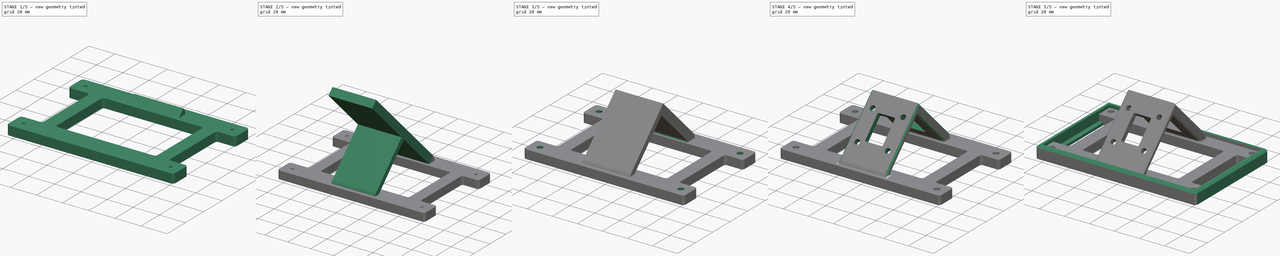
[diagram: build sequence overview — one tinted view per stage of 5, left to right]
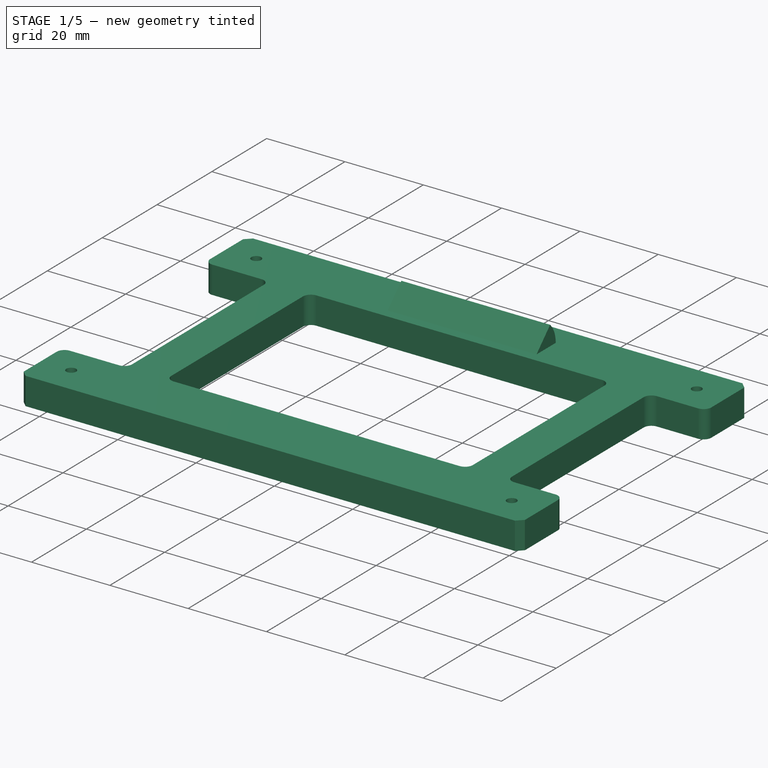
[diagram: stage 1 of 5 — iso view after this stage's code; geometry added in this stage tinted green]
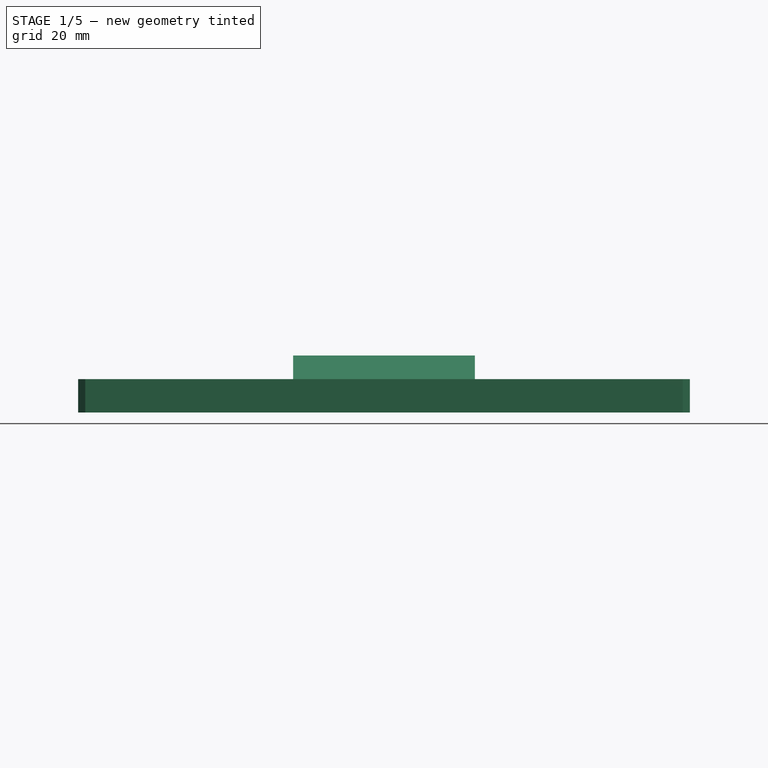
[diagram: stage 1 of 5 — front view after this stage's code; geometry added in this stage tinted green]
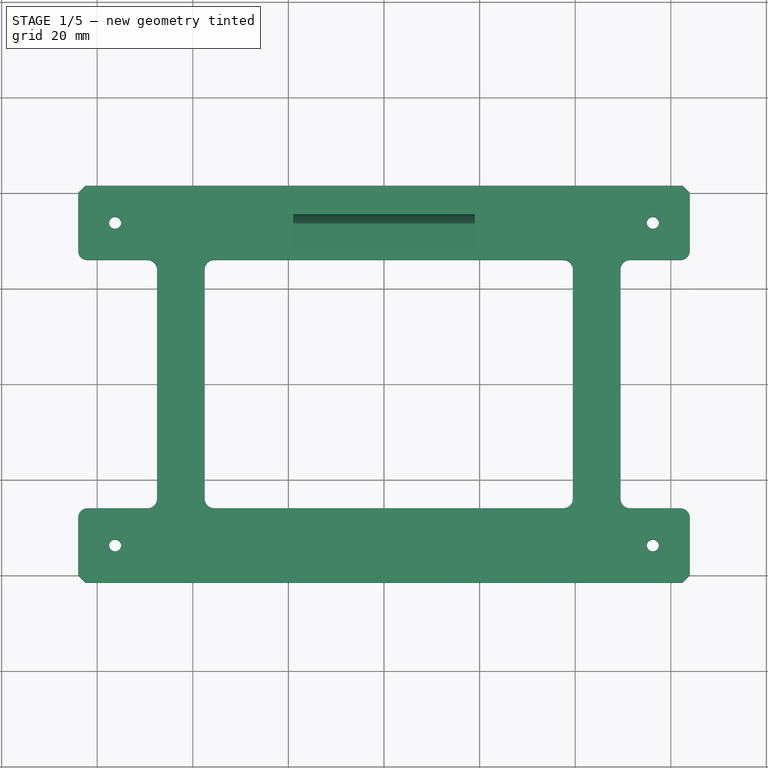
[diagram: stage 1 of 5 — top view after this stage's code; geometry added in this stage tinted green]
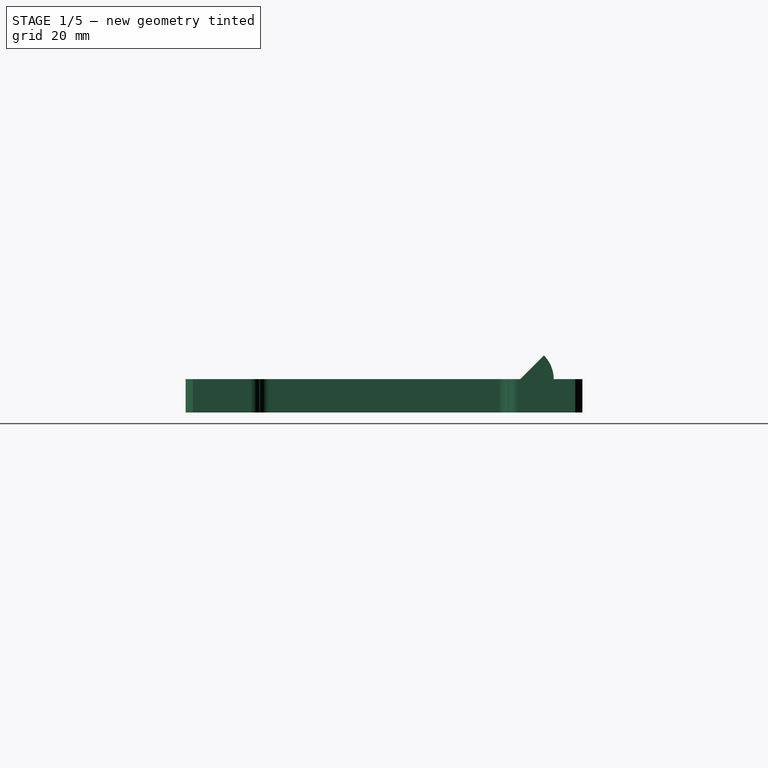
[diagram: stage 1 of 5 — right view after this stage's code; geometry added in this stage tinted green]
FCSTD DOCUMENT  (FreeCAD 1.1RUnknown)
Label: display_mount
License: All rights reserved
LicenseURL: https://en.wikipedia.org/wiki/All_rights_reserved
objects: Sketcher::SketchObject×8, PartDesign::Pocket×5, PartDesign::Pad×4, PartDesign::Chamfer×3, App::Point×2, PartDesign::Body×2, PartDesign::Revolution×2, Spreadsheet::Sheet×1, PartDesign::Fillet×1
note: 63 computed .brp shape members not serialized (recipe doc carries the construction recipe); baked Part::Feature solids carry a one-line shape summary decoded from their .brp

FEATURE [PartDesign::Body] Body  label="Backplate"
  AllowCompound = false
  Group = -> [Sketch,Pad,Sketch001,Pocket,Chamfer]
  Origin = -> Origin
  Placement = pos=(0,0,45) rot=(0,0,1;3.14159rad)
  Tip = -> Chamfer
FEATURE [App::Point] Origin003
  Role = Origin
FEATURE [Sketcher::SketchObject] Sketch002
  ArcFitTolerance = 1e-06
  AttachmentSupport = -> [Origin002]
  ExternalTypes = [0]
  FullyConstrained = true
  MakeInternals = false
  MapMode = 5
  _ExternalGeoVersion = 1
  expr: Constraints[10] = Spreadsheet.display_screw_thread_width
  expr: Constraints[11] = Spreadsheet.display_offset_screw_y + Spreadsheet.enclosure_width_wall
  expr: Constraints[28] = Spreadsheet.display_offset_screw_x + Spreadsheet.enclosure_width_wall
  expr: Constraints[34] = Spreadsheet.enclosure_width_wall + Spreadsheet.enclosure_vertical_1_x
  expr: Constraints[35] = Spreadsheet.enclosure_vertical_width
  expr: Constraints[36] = Spreadsheet.enclosure_width_wall + Spreadsheet.enclosure_vertical_2_x
  expr: Constraints[37] = Spreadsheet.enclosure_vertical_width
  expr: Constraints[8] = Spreadsheet.display_width + Spreadsheet.enclosure_width_wall * 2
  expr: Constraints[9] = Spreadsheet.display_height + Spreadsheet.enclosure_width_wall * 2
  sketch-geometry (48):
    g0: LineSegment StartX=64 StartY=-41.5 StartZ=0 EndX=64 EndY=-28 EndZ=0
    g1: LineSegment StartX=64 StartY=41.5 StartZ=0 EndX=-64 EndY=41.5 EndZ=0
    g2: LineSegment StartX=-64 StartY=41.5 StartZ=0 EndX=-64 EndY=28 EndZ=0
    g3: LineSegment StartX=-64 StartY=-41.5 StartZ=0 EndX=64 EndY=-41.5 EndZ=0
    g4: GeomPoint [constr] X=0 Y=0 Z=0
    g5: Circle CenterX=-56.25 CenterY=33.75 CenterZ=0 NormalX=0 NormalY=0 NormalZ=1 AngleXU=0 Radius=1.25
    g6: Circle CenterX=56.25 CenterY=33.75 CenterZ=0 NormalX=0 NormalY=0 NormalZ=1 AngleXU=0 Radius=1.25
    g7: Circle CenterX=-56.25 CenterY=-33.75 CenterZ=0 NormalX=0 NormalY=0 NormalZ=1 AngleXU=0 Radius=1.25
    g8: Circle CenterX=56.25 CenterY=-33.75 CenterZ=0 NormalX=0 NormalY=0 NormalZ=1 AngleXU=0 Radius=1.25
    g9: LineSegment StartX=-62 StartY=-26 StartZ=0 EndX=-49.5 EndY=-26 EndZ=0
    g10: LineSegment [constr] StartX=-56.25 StartY=-33.75 StartZ=0 EndX=-56.25 EndY=-26 EndZ=0
    g11: LineSegment [constr] StartX=-56.25 StartY=-33.75 StartZ=0 EndX=-56.25 EndY=-41.5 EndZ=0
    g12: LineSegment StartX=-62 StartY=26 StartZ=0 EndX=-49.5 EndY=26 EndZ=0
    g13: LineSegment StartX=-64 StartY=-28 StartZ=0 EndX=-64 EndY=-41.5 EndZ=0
    g14: LineSegment StartX=64 StartY=28 StartZ=0 EndX=64 EndY=41.5 EndZ=0
    g15: LineSegment StartX=-47.5 StartY=24 StartZ=0 EndX=-47.5 EndY=-24 EndZ=0
    g16: LineSegment StartX=-37.5 StartY=24 StartZ=0 EndX=-37.5 EndY=-24 EndZ=0
    g17: LineSegment StartX=39.5 StartY=24 StartZ=0 EndX=39.5 EndY=-24 EndZ=0
    g18: LineSegment StartX=49.5 StartY=24 StartZ=0 EndX=49.5 EndY=-24 EndZ=0
    g19: LineSegment StartX=-35.5 StartY=26 StartZ=0 EndX=37.5 EndY=26 EndZ=0
    g20: LineSegment StartX=-35.5 StartY=-26 StartZ=0 EndX=37.5 EndY=-26 EndZ=0
    g21: LineSegment StartX=51.5 StartY=26 StartZ=0 EndX=62 EndY=26 EndZ=0
    g22: LineSegment StartX=51.5 StartY=-26 StartZ=0 EndX=62 EndY=-26 EndZ=0
    g23: ArcOfCircle CenterX=-62 CenterY=-28 CenterZ=0 NormalX=0 NormalY=0 NormalZ=1 AngleXU=0 Radius=2 StartAngle=1.5708 EndAngle=3.14159
    g24: GeomPoint [constr] X=-64 Y=-26 Z=0
    g25: ArcOfCircle CenterX=-49.5 CenterY=-24 CenterZ=0 NormalX=0 NormalY=0 NormalZ=1 AngleXU=0 Radius=2 StartAngle=4.71239 EndAngle=6.28319
    g26: GeomPoint [constr] X=-47.5 Y=-26 Z=0
    g27: ArcOfCircle CenterX=-35.5 CenterY=-24 CenterZ=0 NormalX=0 NormalY=0 NormalZ=1 AngleXU=0 Radius=2 StartAngle=3.14159 EndAngle=4.71239
    g28: GeomPoint [constr] X=-37.5 Y=-26 Z=0
    g29: LineSegment [constr] StartX=-62 StartY=-28 StartZ=0 EndX=-64 EndY=-28 EndZ=0
    g30: ArcOfCircle CenterX=-62 CenterY=28 CenterZ=0 NormalX=0 NormalY=0 NormalZ=1 AngleXU=0 Radius=2 StartAngle=3.14159 EndAngle=4.71239
    g31: GeomPoint [constr] X=-64 Y=26 Z=0
    g32: ArcOfCircle CenterX=-49.5 CenterY=24 CenterZ=0 NormalX=0 NormalY=0 NormalZ=1 AngleXU=0 Radius=2 StartAngle=0 EndAngle=1.5708
    g33: GeomPoint [constr] X=-47.5 Y=26 Z=0
    g34: ArcOfCircle CenterX=-35.5 CenterY=24 CenterZ=0 NormalX=0 NormalY=0 NormalZ=1 AngleXU=0 Radius=2 StartAngle=1.5708 EndAngle=3.14159
    g35: GeomPoint [constr] X=-37.5 Y=26 Z=0
    g36: ArcOfCircle CenterX=37.5 CenterY=-24 CenterZ=0 NormalX=0 NormalY=0 NormalZ=1 AngleXU=0 Radius=2 StartAngle=4.71239 EndAngle=6.28319
    g37: GeomPoint [constr] X=39.5 Y=-26 Z=0
    g38: ArcOfCircle CenterX=37.5 CenterY=24 CenterZ=0 NormalX=0 NormalY=0 NormalZ=1 AngleXU=0 Radius=2 StartAngle=6e-16 EndAngle=1.5708
    g39: GeomPoint [constr] X=39.5 Y=26 Z=0
    g40: ArcOfCircle CenterX=51.5 CenterY=24 CenterZ=0 NormalX=0 NormalY=0 NormalZ=1 AngleXU=0 Radius=2 StartAngle=1.5708 EndAngle=3.14159
    g41: GeomPoint [constr] X=49.5 Y=26 Z=0
    g42: ArcOfCircle CenterX=62 CenterY=28 CenterZ=0 NormalX=0 NormalY=0 NormalZ=1 AngleXU=0 Radius=2 StartAngle=4.71239 EndAngle=6.28319
    g43: GeomPoint [constr] X=64 Y=26 Z=0
    g44: ArcOfCircle CenterX=62 CenterY=-28 CenterZ=0 NormalX=0 NormalY=0 NormalZ=1 AngleXU=0 Radius=2 StartAngle=8e-16 EndAngle=1.5708
    g45: GeomPoint [constr] X=64 Y=-26 Z=0
    g46: ArcOfCircle CenterX=51.5 CenterY=-24 CenterZ=0 NormalX=0 NormalY=0 NormalZ=1 AngleXU=0 Radius=2 StartAngle=3.14159 EndAngle=4.71239
    g47: GeomPoint [constr] X=49.5 Y=-26 Z=0
  constraints (107):
    c: Coincident(g14,g1)
    c: Coincident(g1,g2)
    c: Coincident(g13,g3)
    c: Coincident(g3,g0)
    c: Horizontal(g1)
    c: Horizontal(g3)
    c: Symmetric(g2,g0,g4)
    c: Coincident(g4,g-1)
    c: DistanceX(g3,g3) = 128
    c: DistanceY(g13,g2) = 83
    c: Diameter(g5) = 2.5
    c: Distance(g5,g1) = 7.75
    c: Equal(g5,g6)
    c: Symmetric(g5,g6,g-2)
    c: Equal(g5,g7)
    c: Symmetric(g5,g7,g-1)
    c: Equal(g7,g8)
    c: Symmetric(g7,g8,g-2)
    c: Vertical(g10)
    c: Coincident(g10,g7)
    c: Vertical(g11)
    c: Coincident(g11,g7)
    c: PointOnObject(g11,g3)
    c: Equal(g10,g11)
    c: Symmetric(g24,g31,g-1)
    c: Symmetric(g45,g43,g-1)
    c: Vertical(g2)
    c: Vertical(g13)
    c: Distance(g5,g2) = 7.75
    c: Vertical(g0)
    c: Vertical(g14)
    c: Vertical(g15)
    c: Vertical(g16)
    c: Vertical(g17)
    c: DistanceX(g31,g33) = 16.5
    c: DistanceX(g33,g35) = 10
    c: DistanceX(g31,g39) = 103.5
    c: DistanceX(g39,g41) = 10
    c: Horizontal(g9)
    c: PointOnObject(g10,g9)
    c: Tangent(g12,g19)
    c: Tangent(g9,g20)
    c: Tangent(g20,g22)
    c: Parallel(g18,g17)
    c: Tangent(g19,g21)
    c: PointOnObject(g24,g9)
    c: PointOnObject(g24,g13)
    c: Tangent(g9,g23) = 1.5708
    c: Tangent(g13,g23) = -1.5708
    c: PointOnObject(g26,g9)
    c: PointOnObject(g26,g15)
    c: Tangent(g9,g25) = -1.5708
    c: Tangent(g15,g25) = 1.5708
    c: PointOnObject(g28,g16)
    c: PointOnObject(g28,g20)
    c: Tangent(g16,g27) = -1.5708
    c: Tangent(g20,g27) = -1.5708
    c: Coincident(g29,g23)
    c: Coincident(g29,g13)
    c: DistanceX(g29,g29) = 2
    c: Equal(g23,g25)
    c: Equal(g27,g23)
    c: PointOnObject(g31,g2)
    c: PointOnObject(g31,g12)
    c: Tangent(g2,g30) = -1.5708
    c: Tangent(g12,g30) = -1.5708
    c: PointOnObject(g33,g12)
    c: PointOnObject(g33,g15)
    c: Tangent(g12,g32) = 1.5708
    c: Tangent(g15,g32) = 1.5708
    c: PointOnObject(g35,g16)
    c: PointOnObject(g35,g19)
    c: Tangent(g16,g34) = -1.5708
    c: Tangent(g19,g34) = 1.5708
    c: PointOnObject(g37,g17)
    c: PointOnObject(g37,g20)
    c: Tangent(g17,g36) = 1.5708
    c: Tangent(g20,g36) = -1.5708
    c: PointOnObject(g39,g17)
    c: PointOnObject(g39,g19)
    c: Tangent(g17,g38) = 1.5708
    c: Tangent(g19,g38) = 1.5708
    c: PointOnObject(g41,g18)
    c: PointOnObject(g41,g21)
    c: Tangent(g18,g40) = -1.5708
    c: Tangent(g21,g40) = 1.5708
    c: PointOnObject(g43,g14)
    c: PointOnObject(g43,g21)
    c: Tangent(g14,g42) = -1.5708
    c: Tangent(g21,g42) = -1.5708
    c: PointOnObject(g45,g0)
    c: PointOnObject(g45,g22)
    c: Tangent(g0,g44) = -1.5708
    c: Tangent(g22,g44) = 1.5708
    c: PointOnObject(g47,g18)
    c: PointOnObject(g47,g22)
    c: Tangent(g18,g46) = -1.5708
    c: Tangent(g22,g46) = -1.5708
    c: Equal(g30,g23)
    c: Equal(g32,g23)
    c: Equal(g34,g23)
    c: Equal(g38,g23)
    c: Equal(g36,g23)
    c: Equal(g46,g23)
    c: Equal(g40,g23)
    c: Equal(g42,g23)
    c: Equal(g44,g23)
FEATURE [PartDesign::Pad] Pad001
  Direction = (0,0,1)
  Length = 7
  Length2 = 10
  Profile = -> Sketch002
  ReferenceAxis = -> Sketch002 [N_Axis]
  Refine = true
  SideType = 0
  Suppressed = false
  Type = 0
  Type2 = 0
FEATURE [PartDesign::Chamfer] Chamfer001
  Angle = 45
  Base = -> Pad001 [Edge8,Edge35,Edge5,Edge38]
  BaseFeature = -> Pad001
  ChamferType = 0
  FlipDirection = false
  Refine = true
  Size = 1.5
  Size2 = 1
  SupportTransform = false
  Suppressed = false
  UseAllEdges = false
FEATURE [Sketcher::SketchObject] Sketch003
  ArcFitTolerance = 1e-06
  AttachmentSupport = -> [Chamfer001]
  ExternalGeometry = -> [Chamfer001]
  ExternalTypes = [0,0]
  FullyConstrained = true
  MakeInternals = false
  MapMode = 5
  Placement = pos=(0,0,7) rot=(0,0,1;0rad)
  _ExternalGeoVersion = 1
  sketch-geometry (5):
    g0: LineSegment StartX=19 StartY=28.5 StartZ=0 EndX=19 EndY=35.5 EndZ=0
    g1: LineSegment StartX=19 StartY=35.5 StartZ=0 EndX=-19 EndY=35.5 EndZ=0
    g2: LineSegment StartX=-19 StartY=35.5 StartZ=0 EndX=-19 EndY=28.5 EndZ=0
    g3: LineSegment StartX=-19 StartY=28.5 StartZ=0 EndX=19 EndY=28.5 EndZ=0
    g4: GeomPoint [constr] X=0 Y=32 Z=0
  constraints (13):
    c: Coincident(g0,g1)
    c: Coincident(g1,g2)
    c: Coincident(g2,g3)
    c: Coincident(g3,g0)
    c: Vertical(g0)
    c: Vertical(g2)
    c: Horizontal(g1)
    c: Horizontal(g3)
    c: Symmetric(g2,g0,g4)
    c: PointOnObject(g4,g-2)
    c: DistanceY(g2,g2) = 7
    c: DistanceX(g1,g1) = 38
    c: Distance(g-3,g3) = 2.5
FEATURE [PartDesign::Revolution] Revolution
  Angle = 45
  Angle2 = 0
  Axis = (1,0,0)
  Base = (-19,28.5,7)
  BaseFeature = -> Chamfer001
  FuseOrder = 0
  Profile = -> Sketch003
  ReferenceAxis = -> Sketch003 [Edge4]
  Refine = true
  Suppressed = false
  Type = 0
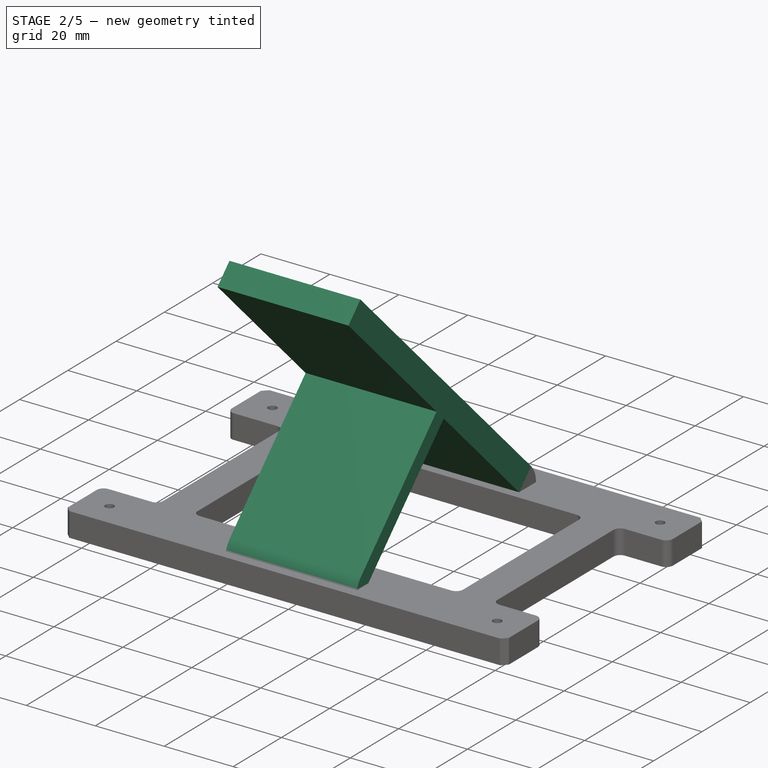
[diagram: stage 2 of 5 — iso view after this stage's code; geometry added in this stage tinted green]
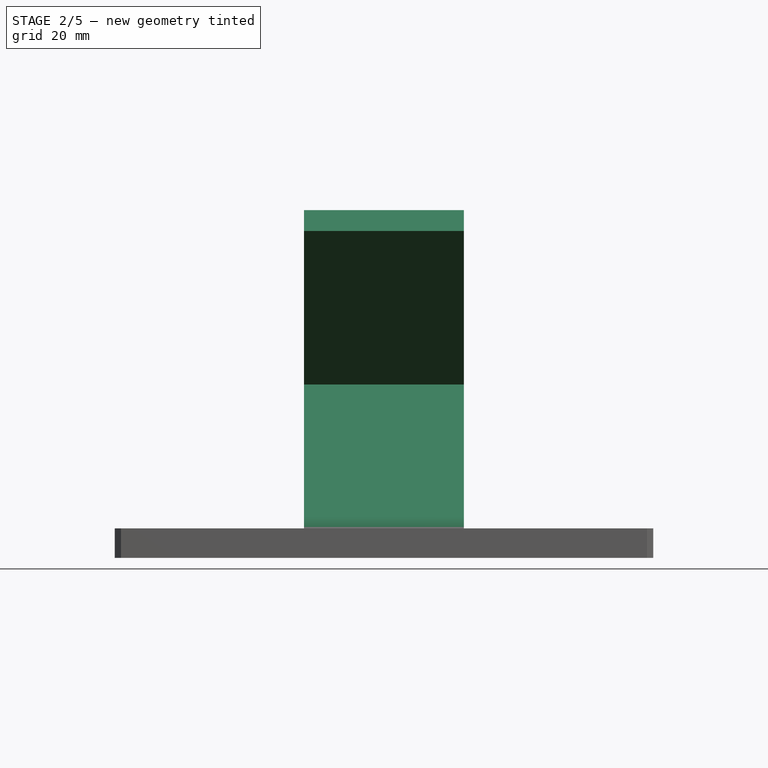
[diagram: stage 2 of 5 — front view after this stage's code; geometry added in this stage tinted green]
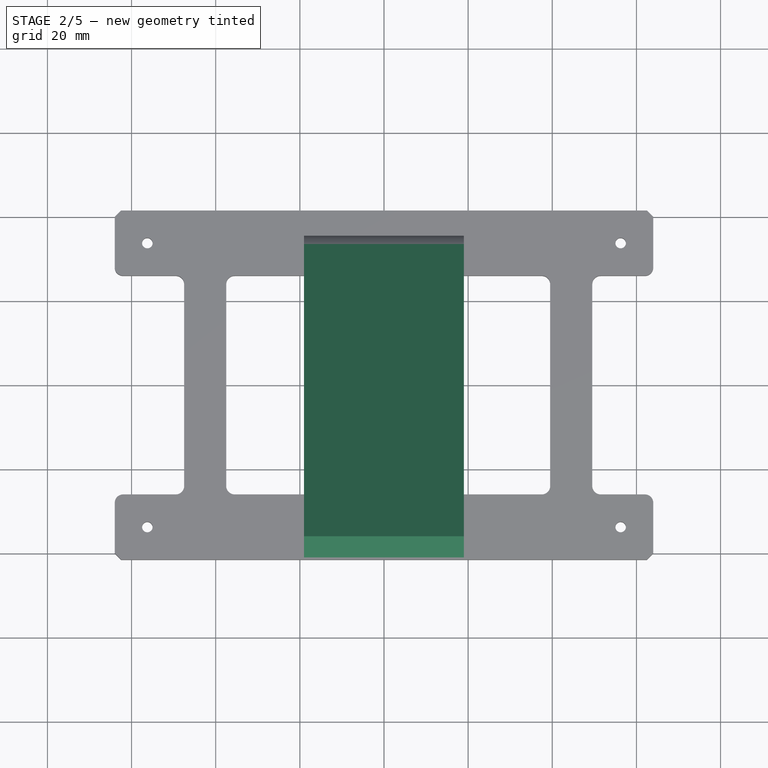
[diagram: stage 2 of 5 — top view after this stage's code; geometry added in this stage tinted green]
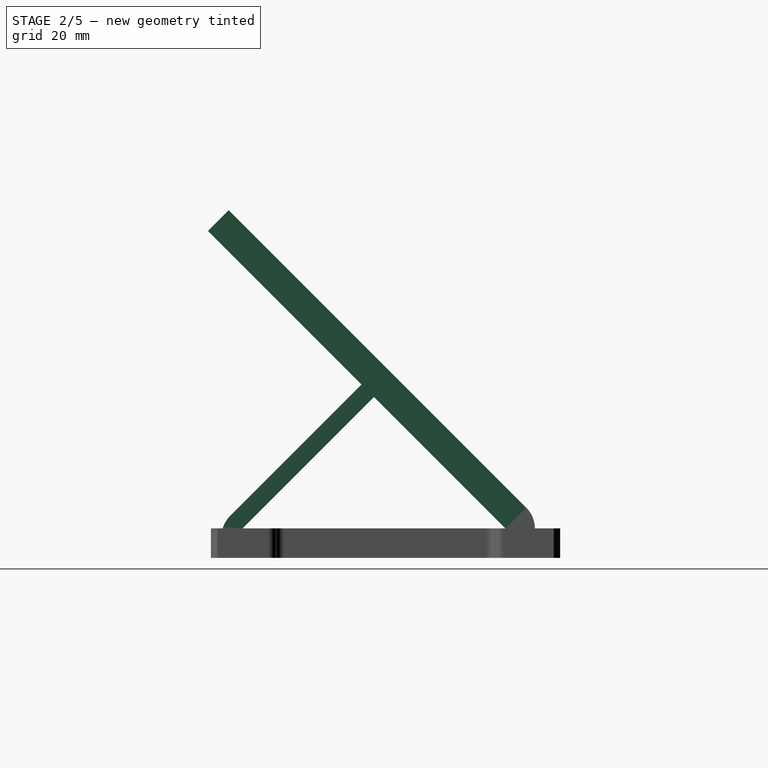
[diagram: stage 2 of 5 — right view after this stage's code; geometry added in this stage tinted green]
FEATURE [Sketcher::SketchObject] Sketch004
  ArcFitTolerance = 1e-06
  ExternalTypes = [0,0]
  FullyConstrained = true
  MakeInternals = false
  MapMode = 5
  Placement = pos=(0,0,5) rot=(0,0,1;0rad)
  _ExternalGeoVersion = 1
  sketch-geometry (5):
    g0: LineSegment StartX=-19 StartY=-39 StartZ=0 EndX=19 EndY=-39 EndZ=0
    g1: LineSegment StartX=19 StartY=-39 StartZ=0 EndX=19 EndY=-32 EndZ=0
    g2: LineSegment StartX=19 StartY=-32 StartZ=0 EndX=-19 EndY=-32 EndZ=0
    g3: LineSegment StartX=-19 StartY=-32 StartZ=0 EndX=-19 EndY=-39 EndZ=0
    g4: GeomPoint [constr] X=0 Y=-35.5 Z=0
  constraints (13):
    c: Coincident(g0,g1)
    c: Coincident(g1,g2)
    c: Coincident(g2,g3)
    c: Coincident(g3,g0)
    c: Horizontal(g0)
    c: Horizontal(g2)
    c: Vertical(g1)
    c: Vertical(g3)
    c: Symmetric(g2,g0,g4)
    c: Distance(g1,g3) = 38
    c: Distance(g0,g2) = 7
    c: PointOnObject(g4,g-2)
    c: Distance(g-4,g0) = 2.5
FEATURE [Sketcher::SketchObject] Sketch005
  ArcFitTolerance = 1e-06
  AttachmentSupport = -> [Pad001]
  ExternalGeometry = -> [Pad001]
  ExternalTypes = [0,0,0,0]
  FullyConstrained = true
  MakeInternals = false
  MapMode = 5
  Placement = pos=(0,0,7) rot=(0,0,1;0rad)
  _ExternalGeoVersion = 1
  sketch-geometry (4):
    g0: Circle CenterX=-56.25 CenterY=33.75 CenterZ=0 NormalX=0 NormalY=0 NormalZ=1 AngleXU=0 Radius=2.25
    g1: Circle CenterX=56.25 CenterY=33.75 CenterZ=0 NormalX=0 NormalY=0 NormalZ=1 AngleXU=0 Radius=2.25
    g2: Circle CenterX=56.25 CenterY=-33.75 CenterZ=0 NormalX=0 NormalY=0 NormalZ=1 AngleXU=0 Radius=2.25
    g3: Circle CenterX=-56.25 CenterY=-33.75 CenterZ=0 NormalX=0 NormalY=0 NormalZ=1 AngleXU=0 Radius=2.25
  constraints (8):
    c: Diameter(g0) = 4.5
    c: Coincident(g0,g-3)
    c: Diameter(g1) = 4.5
    c: Coincident(g1,g-4)
    c: Diameter(g2) = 4.5
    c: Coincident(g2,g-5)
    c: Diameter(g3) = 4.5
    c: Coincident(g3,g-6)
FEATURE [PartDesign::Revolution] Revolution001
  Angle = 45
  Angle2 = 0
  Axis = (-1,0,0)
  Base = (19,-32,5)
  BaseFeature = -> Revolution
  FuseOrder = 0
  Profile = -> Sketch004
  ReferenceAxis = -> Sketch004 [Edge3]
  Refine = true
  Suppressed = false
  Type = 0
FEATURE [PartDesign::Pad] Pad002
  BaseFeature = -> Revolution001
  Direction = (0,-0.707107,0.707107)
  Length = 100
  Length2 = 10
  Profile = -> Revolution001 [Face44]
  Refine = true
  SideType = 0
  Suppressed = false
  Type = 0
  Type2 = 0
FEATURE [PartDesign::Pad] Pad003
  BaseFeature = -> Pad002
  Direction = (0,0.707107,0.707107)
  Length = 10
  Length2 = 10
  Profile = -> Pad002 [Face41]
  Refine = true
  SideType = 0
  Suppressed = false
  Type = 3
  Type2 = 0
  UpToFace = -> Pad002 [Face43]
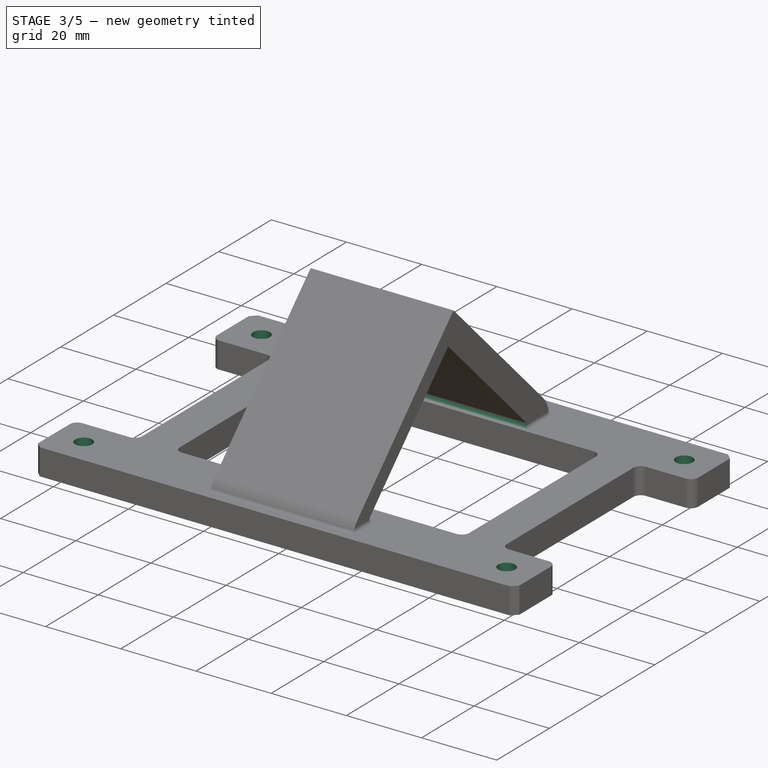
[diagram: stage 3 of 5 — iso view after this stage's code; geometry added in this stage tinted green]
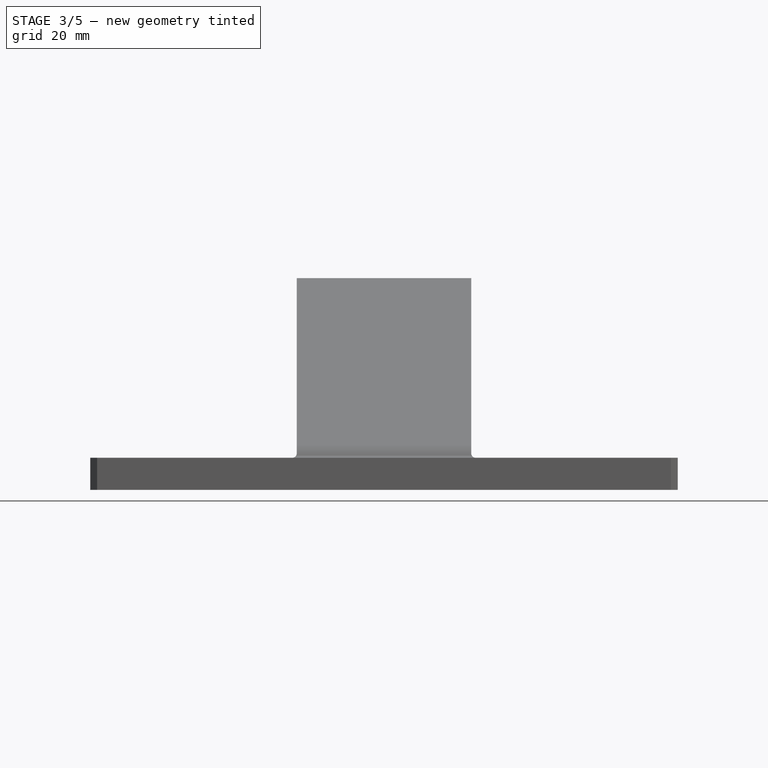
[diagram: stage 3 of 5 — front view after this stage's code; geometry added in this stage tinted green]
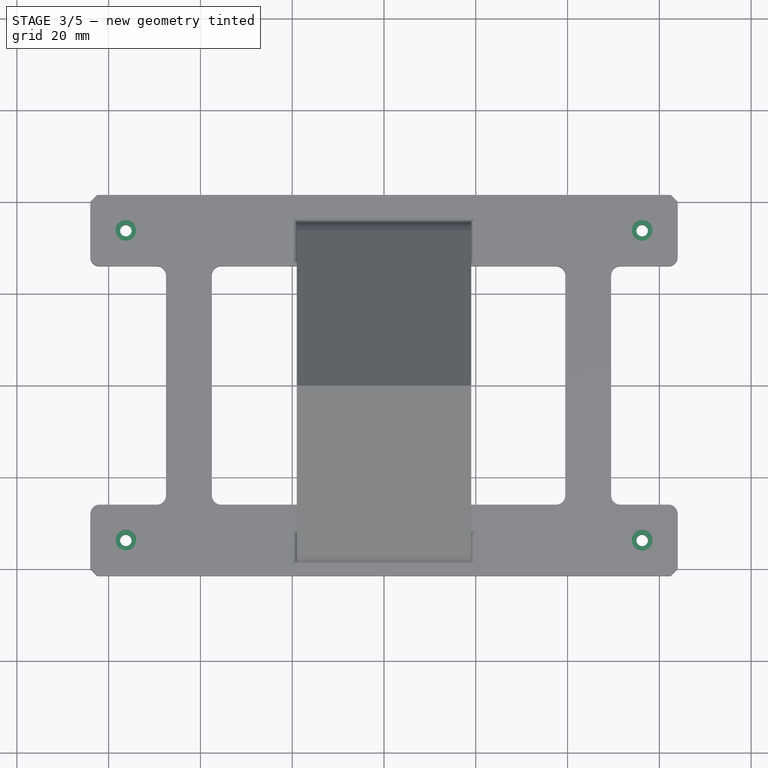
[diagram: stage 3 of 5 — top view after this stage's code; geometry added in this stage tinted green]
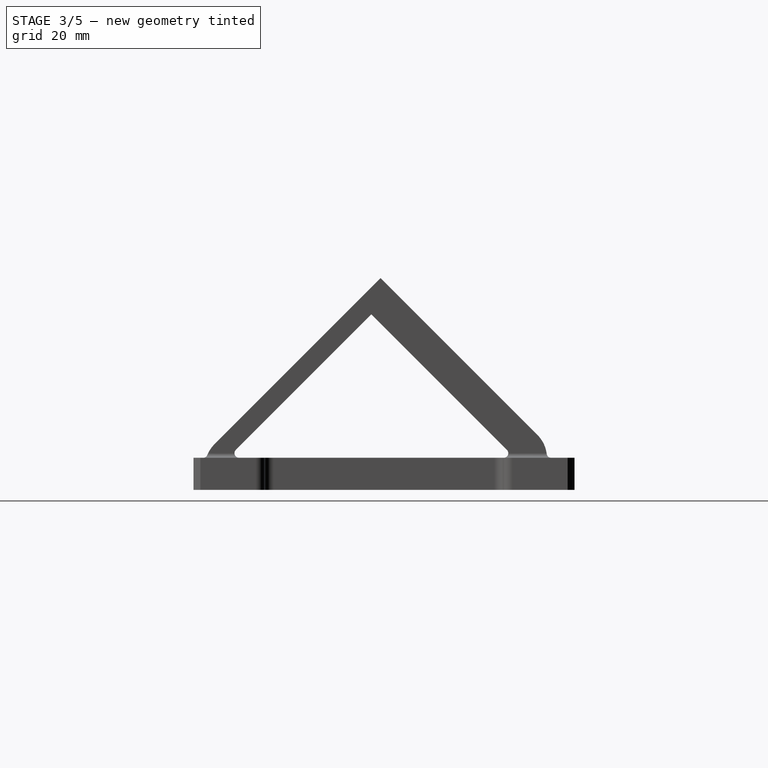
[diagram: stage 3 of 5 — right view after this stage's code; geometry added in this stage tinted green]
FEATURE [PartDesign::Pocket] Pocket001
  BaseFeature = -> Pad003
  Direction = (0,0.707107,-0.707107)
  Length = 5
  Length2 = 5
  Profile = -> Pad003 [Face45]
  Refine = true
  SideType = 0
  Suppressed = false
  Type = 3
  Type2 = 0
  UpToFace = -> Pad003 [Face43]
FEATURE [PartDesign::Pocket] Pocket002
  BaseFeature = -> Pocket001
  Direction = (0,0,-1)
  Length = 2
  Length2 = 5
  Profile = -> Sketch005
  ReferenceAxis = -> Sketch005 [N_Axis]
  Refine = true
  SideType = 0
  Suppressed = false
  Type = 0
  Type2 = 0
FEATURE [PartDesign::Fillet] Fillet
  Base = -> Pocket002 [Edge80,Edge81,Edge82,Edge83,Edge67,Edge66,Edge69,Edge68]
  BaseFeature = -> Pocket002
  Radius = 1
  Refine = true
  SupportTransform = false
  Suppressed = false
  UseAllEdges = false
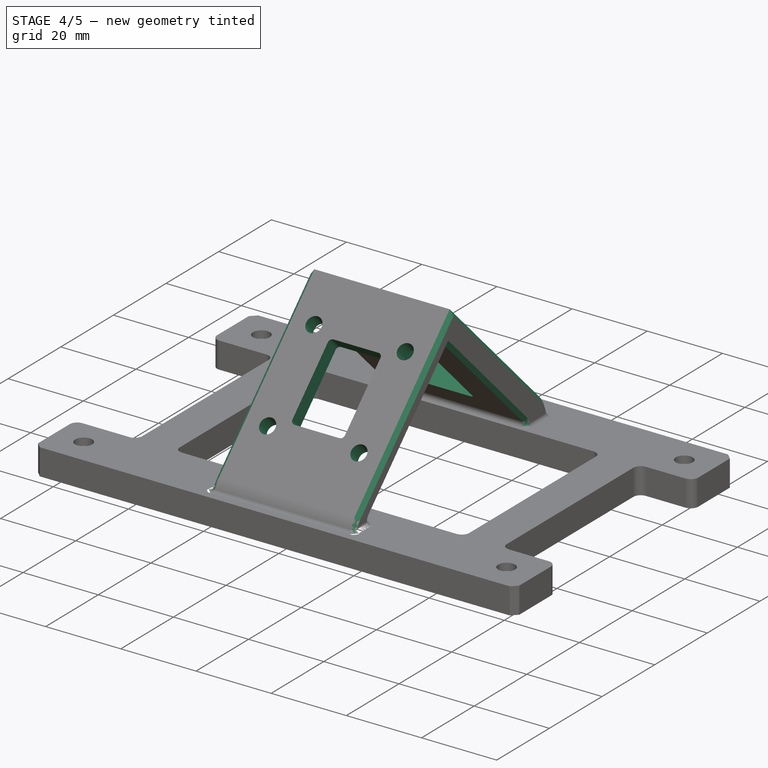
[diagram: stage 4 of 5 — iso view after this stage's code; geometry added in this stage tinted green]
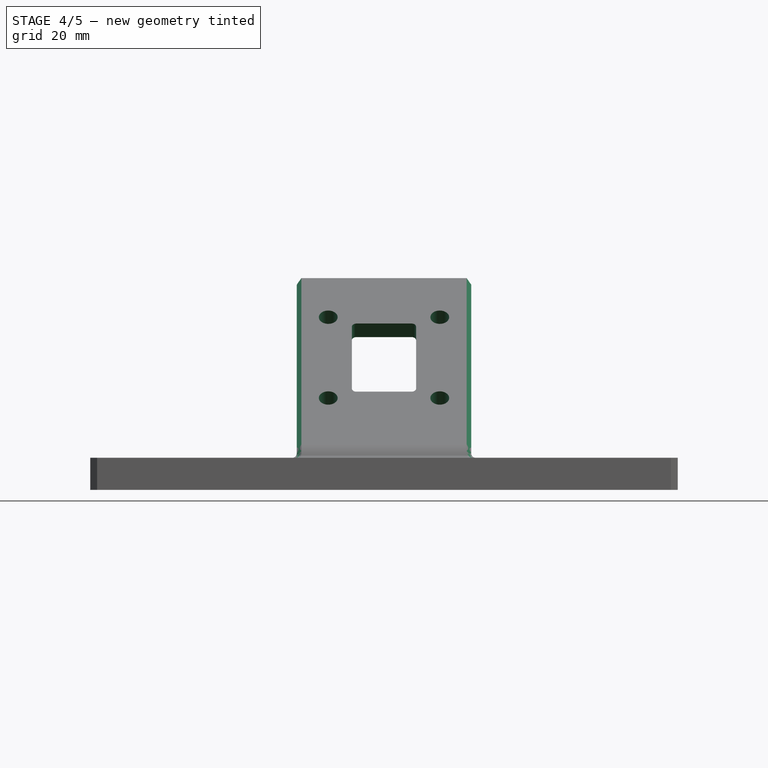
[diagram: stage 4 of 5 — front view after this stage's code; geometry added in this stage tinted green]
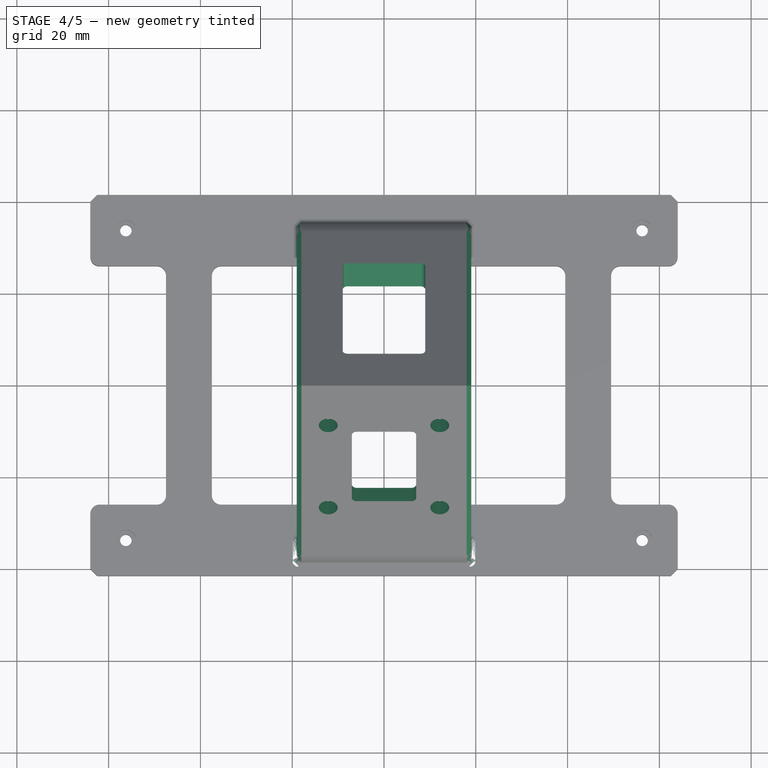
[diagram: stage 4 of 5 — top view after this stage's code; geometry added in this stage tinted green]
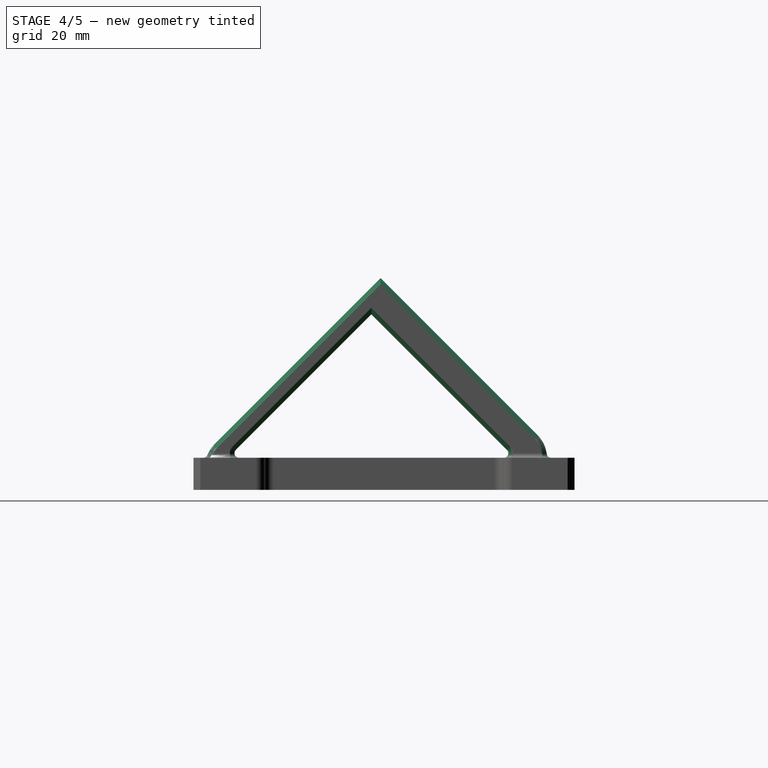
[diagram: stage 4 of 5 — right view after this stage's code; geometry added in this stage tinted green]
FEATURE [Sketcher::SketchObject] Sketch006
  ArcFitTolerance = 1e-06
  AttachmentSupport = -> [Fillet]
  ExternalGeometry = -> [Fillet]
  ExternalTypes = [0,0,0]
  FullyConstrained = true
  MakeInternals = false
  MapMode = 5
  Placement = pos=(0,-23.4497,23.4497) rot=(1,0,0;0.785398rad)
  _ExternalGeoVersion = 1
  sketch-geometry (20):
    g0: Circle CenterX=-12.15 CenterY=20.0523 CenterZ=0 NormalX=0 NormalY=0 NormalZ=1 AngleXU=0 Radius=2.05
    g1: Circle CenterX=-12.15 CenterY=-4.84771 CenterZ=0 NormalX=0 NormalY=0 NormalZ=1 AngleXU=0 Radius=2.05
    g2: LineSegment [constr] StartX=-12.15 StartY=-4.84771 StartZ=0 EndX=-19 EndY=-4.84771 EndZ=0
    g3: LineSegment [constr] StartX=-12.15 StartY=20.0523 StartZ=0 EndX=-19 EndY=20.0523 EndZ=0
    g4: Circle CenterX=12.15 CenterY=20.0523 CenterZ=0 NormalX=0 NormalY=0 NormalZ=1 AngleXU=0 Radius=2.05
    g5: Circle CenterX=12.15 CenterY=-4.84771 CenterZ=0 NormalX=0 NormalY=0 NormalZ=1 AngleXU=0 Radius=2.05
    g6: LineSegment StartX=7 StartY=-1.89771 StartZ=0 EndX=7 EndY=17.1023 EndZ=0
    g7: LineSegment StartX=6 StartY=18.1023 StartZ=0 EndX=-6 EndY=18.1023 EndZ=0
    g8: LineSegment StartX=-7 StartY=17.1023 StartZ=0 EndX=-7 EndY=-1.89771 EndZ=0
    g9: LineSegment StartX=-6 StartY=-2.89771 StartZ=0 EndX=6 EndY=-2.89771 EndZ=0
    g10: GeomPoint [constr] X=0 Y=7.60229 Z=0
    g11: ArcOfCircle CenterX=-6 CenterY=-1.89771 CenterZ=0 NormalX=0 NormalY=0 NormalZ=1 AngleXU=0 Radius=1 StartAngle=3.14159 EndAngle=4.71239
    g12: GeomPoint [constr] X=-7 Y=-2.89771 Z=0
    g13: ArcOfCircle CenterX=6 CenterY=-1.89771 CenterZ=0 NormalX=0 NormalY=0 NormalZ=1 AngleXU=0 Radius=1 StartAngle=4.71239 EndAngle=6.28319
    g14: GeomPoint [constr] X=7 Y=-2.89771 Z=0
    g15: ArcOfCircle CenterX=6 CenterY=17.1023 CenterZ=0 NormalX=0 NormalY=0 NormalZ=1 AngleXU=0 Radius=1 StartAngle=1.7e-15 EndAngle=1.5708
    g16: GeomPoint [constr] X=7 Y=18.1023 Z=0
    g17: ArcOfCircle CenterX=-6 CenterY=17.1023 CenterZ=0 NormalX=0 NormalY=0 NormalZ=1 AngleXU=0 Radius=1 StartAngle=1.5708 EndAngle=3.14159
    g18: GeomPoint [constr] X=-7 Y=18.1023 Z=0
    g19: LineSegment [constr] StartX=-6 StartY=17.1023 StartZ=0 EndX=-7 EndY=17.1023 EndZ=0
  constraints (47):
    c: Diameter(g0) = 4.1
    c: Distance(g0,g-3) = 12.05
    c: Diameter(g1) = 4.1
    c: DistanceY(g1,g0) = 24.9
    c: Coincident(g2,g1)
    c: PointOnObject(g2,g-4)
    c: Horizontal(g2)
    c: Coincident(g3,g0)
    c: PointOnObject(g3,g-4)
    c: Horizontal(g3)
    c: DistanceX(g3,g3) = 6.85
    c: Equal(g3,g2)
    c: Equal(g0,g4)
    c: Symmetric(g0,g4,g-2)
    c: Equal(g1,g5)
    c: Symmetric(g1,g5,g-2)
    c: Vertical(g6)
    c: Vertical(g8)
    c: Horizontal(g7)
    c: Horizontal(g9)
    c: Symmetric(g18,g14,g10)
    c: PointOnObject(g10,g-2)
    c: Distance(g18,g-3) = 14
    c: DistanceY(g14,g16) = 21
    c: DistanceX(g12,g14) = 14
    c: PointOnObject(g12,g8)
    c: PointOnObject(g12,g9)
    c: Tangent(g8,g11) = -1.5708
    c: Tangent(g9,g11) = -1.5708
    c: PointOnObject(g14,g6)
    c: PointOnObject(g14,g9)
    c: Tangent(g6,g13) = -1.5708
    c: Tangent(g9,g13) = -1.5708
    c: PointOnObject(g16,g7)
    c: PointOnObject(g16,g6)
    c: Tangent(g7,g15) = -1.5708
    c: Tangent(g6,g15) = -1.5708
    c: PointOnObject(g18,g7)
    c: PointOnObject(g18,g8)
    c: Tangent(g7,g17) = -1.5708
    c: Tangent(g8,g17) = -1.5708
    c: Coincident(g19,g17)
    c: Coincident(g19,g8)
    c: DistanceX(g19,g19) = 1
    c: Equal(g17,g15)
    c: Equal(g17,g11)
    c: Equal(g17,g13)
FEATURE [PartDesign::Pocket] Pocket003
  BaseFeature = -> Fillet
  Direction = (0,0.707107,-0.707107)
  Length = 5
  Length2 = 5
  Profile = -> Sketch006
  ReferenceAxis = -> Sketch006 [N_Axis]
  Refine = true
  SideType = 0
  Suppressed = false
  Type = 2
  Type2 = 0
FEATURE [Sketcher::SketchObject] Sketch007
  ArcFitTolerance = 1e-06
  AttachmentSupport = -> [Pocket003]
  ExternalGeometry = -> [Pocket003]
  ExternalTypes = [0]
  FullyConstrained = true
  MakeInternals = false
  MapMode = 5
  Placement = pos=(0,22.6997,22.6997) rot=(0,0.382683,0.92388;3.14159rad)
  _ExternalGeoVersion = 1
  sketch-geometry (16):
    g0: LineSegment StartX=-8 StartY=-5.2028 StartZ=0 EndX=8 EndY=-5.2028 EndZ=0
    g1: LineSegment StartX=9 StartY=-4.2028 StartZ=0 EndX=9 EndY=22.163 EndZ=0
    g2: LineSegment StartX=-8 StartY=23.163 StartZ=0 EndX=8 EndY=23.163 EndZ=0
    g3: LineSegment StartX=-9 StartY=-4.2028 StartZ=0 EndX=-9 EndY=22.163 EndZ=0
    g4: LineSegment [constr] StartX=-9 StartY=-5.2028 StartZ=0 EndX=-9 EndY=-15.2028 EndZ=0
    g5: LineSegment [constr] StartX=9 StartY=-5.2028 StartZ=0 EndX=19 EndY=-5.2028 EndZ=0
    g6: LineSegment [constr] StartX=-9 StartY=23.163 StartZ=0 EndX=-9 EndY=33.163 EndZ=0
    g7: LineSegment [constr] StartX=-9 StartY=-5.2028 StartZ=0 EndX=-19 EndY=-5.2028 EndZ=0
    g8: ArcOfCircle CenterX=-8 CenterY=22.163 CenterZ=0 NormalX=0 NormalY=0 NormalZ=1 AngleXU=0 Radius=1 StartAngle=1.5708 EndAngle=3.14159
    g9: GeomPoint [constr] X=-9 Y=23.163 Z=0
    g10: ArcOfCircle CenterX=8 CenterY=22.163 CenterZ=0 NormalX=0 NormalY=0 NormalZ=1 AngleXU=0 Radius=1 StartAngle=1.6e-15 EndAngle=1.5708
    g11: GeomPoint [constr] X=9 Y=23.163 Z=0
    g12: ArcOfCircle CenterX=8 CenterY=-4.2028 CenterZ=0 NormalX=0 NormalY=0 NormalZ=1 AngleXU=0 Radius=1 StartAngle=4.71239 EndAngle=6.28319
    g13: GeomPoint [constr] X=9 Y=-5.2028 Z=0
    g14: ArcOfCircle CenterX=-8 CenterY=-4.2028 CenterZ=0 NormalX=0 NormalY=0 NormalZ=1 AngleXU=0 Radius=1 StartAngle=3.14159 EndAngle=4.71239
    g15: GeomPoint [constr] X=-9 Y=-5.2028 Z=0
  constraints (40):
    c: Perpendicular(g4,g0)
    c: PointOnObject(g4,g0)
    c: PointOnObject(g4,g-3)
    c: Perpendicular(g5,g1)
    c: PointOnObject(g5,g1)
    c: PointOnObject(g5,g-4)
    c: Perpendicular(g6,g2)
    c: PointOnObject(g6,g2)
    c: PointOnObject(g6,g-5)
    c: PointOnObject(g7,g3)
    c: PointOnObject(g7,g-6)
    c: Parallel(g3,g-6)
    c: Equal(g5,g4)
    c: Equal(g6,g4)
    c: Equal(g7,g4)
    c: Distance(g4) = 10
    c: Tangent(g5,g0)
    c: Tangent(g4,g3)
    c: Tangent(g7,g0)
    c: Tangent(g6,g3)
    c: PointOnObject(g9,g2)
    c: PointOnObject(g9,g3)
    c: Tangent(g2,g8) = 1.5708
    c: Tangent(g3,g8) = 1.5708
    c: PointOnObject(g11,g2)
    c: PointOnObject(g11,g1)
    c: Tangent(g2,g10) = 1.5708
    c: Tangent(g1,g10) = -1.5708
    c: PointOnObject(g13,g1)
    c: PointOnObject(g13,g0)
    c: Tangent(g1,g12) = -1.5708
    c: Tangent(g0,g12) = -1.5708
    c: PointOnObject(g15,g0)
    c: PointOnObject(g15,g3)
    c: Tangent(g0,g14) = -1.5708
    c: Tangent(g3,g14) = 1.5708
    c: DistanceX(g3,g8) = 1
    c: Equal(g8,g10)
    c: Equal(g14,g8)
    c: Equal(g8,g12)
FEATURE [PartDesign::Pocket] Pocket004
  BaseFeature = -> Pocket003
  Direction = (0,-0.707107,-0.707107)
  Length = 5
  Length2 = 5
  Profile = -> Sketch007
  ReferenceAxis = -> Sketch007 [N_Axis]
  Refine = true
  SideType = 0
  Suppressed = false
  Type = 2
  Type2 = 0
FEATURE [PartDesign::Chamfer] Chamfer002
  Angle = 45
  Base = -> Pocket004 [Edge146,Edge148,Edge162,Edge150,Edge159,Edge161,Edge147,Edge145]
  BaseFeature = -> Pocket004
  ChamferType = 0
  FlipDirection = false
  Refine = true
  Size = 1
  Size2 = 1
  SupportTransform = false
  Suppressed = false
  UseAllEdges = false
FEATURE [PartDesign::Body] Body001  label="SkirtMount"
  AllowCompound = false
  Group = -> [Sketch002,Pad001,Sketch005,Chamfer001,Sketch003,Revolution,Sketch004,Revolution001,Pad002,Pad003,Pocket001,Pocket002,Fillet,Sketch006,Pocket003,Sketch007,Pocket004,Chamfer002]
  Origin = -> Origin002
  Placement = pos=(0,0,0) rot=(0,1,0;3.14159rad)
  Tip = -> Chamfer002
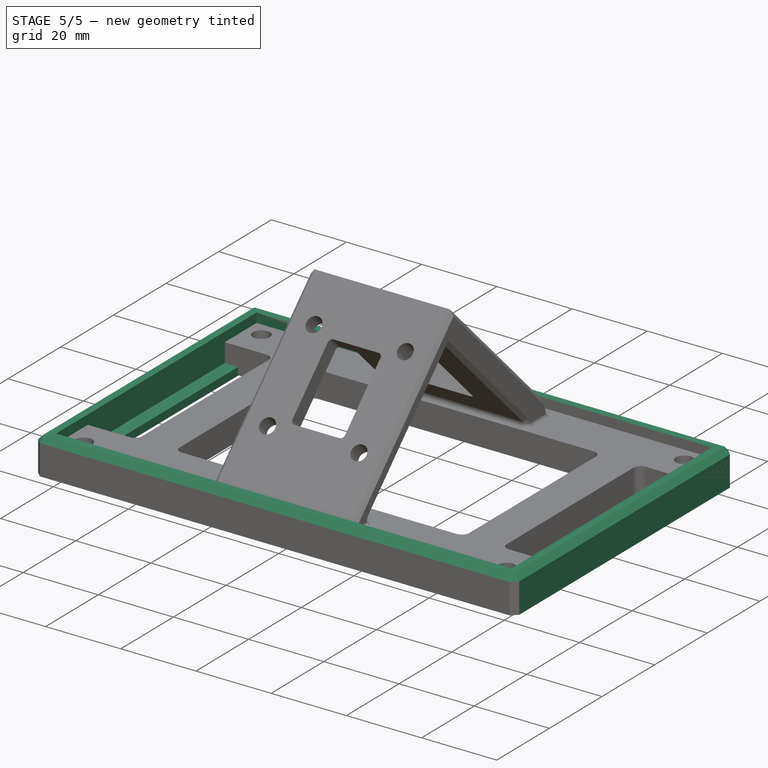
[diagram: stage 5 of 5 — iso view after this stage's code; geometry added in this stage tinted green]
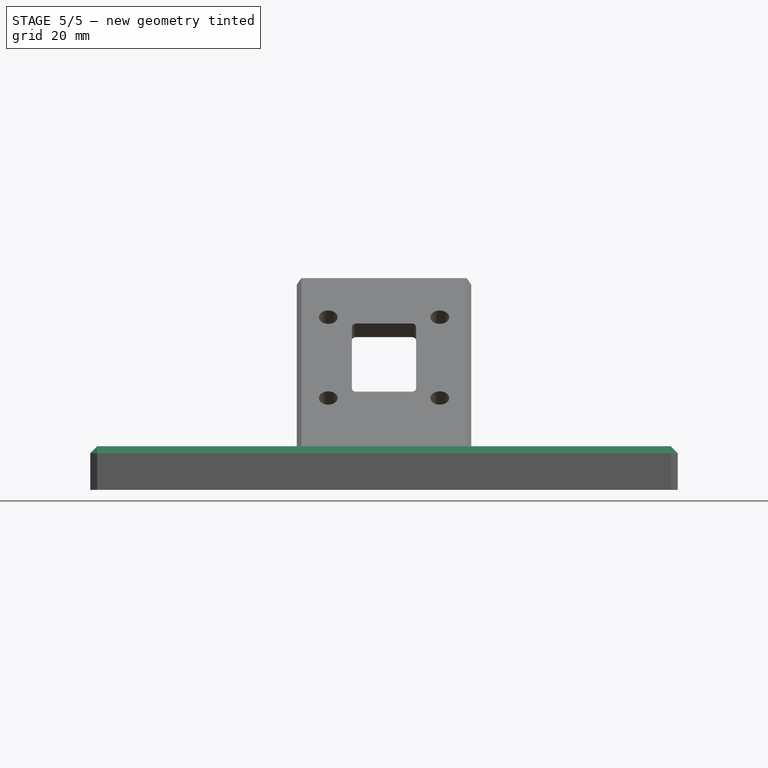
[diagram: stage 5 of 5 — front view after this stage's code; geometry added in this stage tinted green]
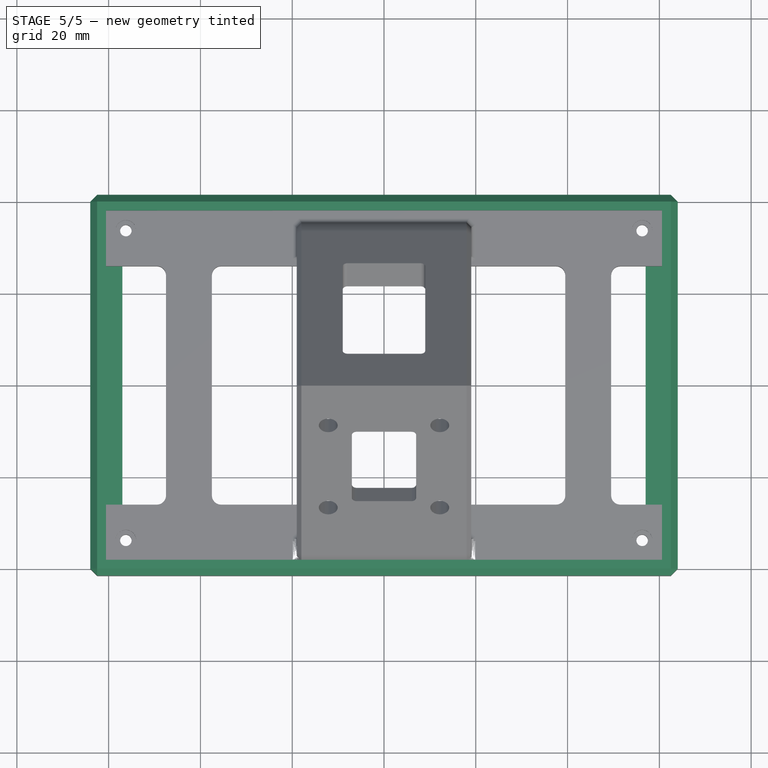
[diagram: stage 5 of 5 — top view after this stage's code; geometry added in this stage tinted green]
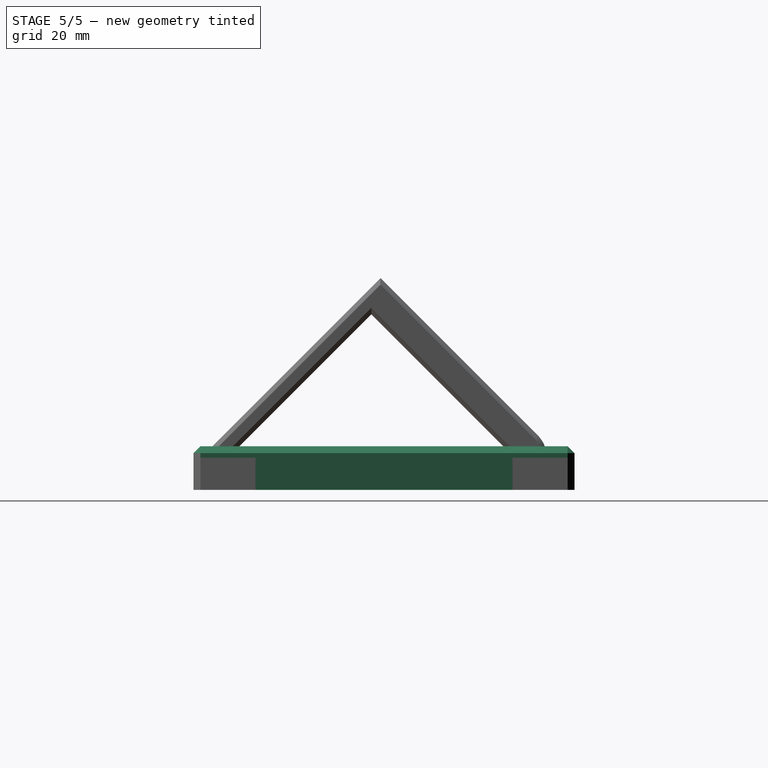
[diagram: stage 5 of 5 — right view after this stage's code; geometry added in this stage tinted green]
FEATURE [Spreadsheet::Sheet] Spreadsheet
  cells = A1='Display: width; B1(display_width)=121; A2='Display: height; B2(display_height)=76; A3='Display: thickness; B3(display_thickness)=7.5; A4='Display: screw offset X; B4(display_offset_screw_x)=4.25; A5='Display: screw offset Y; B5(display_offset_screw_y)=4.25; A6='Display: screw thread width; B6(display_screw_thread_width)=2.5; A8='Enclosure: back width; B8(enclosure_width_back)=3.5; A9='Enclosure: back width (bottom); B9(enclosure_width_back_bottom)=0; A10='Enclosure: wall width; B10(enclosure_width_wall)=3.5; A11='Enclosure: back thickness; B11(enclosure_thickness)=2; A12='Enclosure: verticals offsets (X); B12(enclosure_vertical_1_x)=13; C12(enclosure_vertical_2_x)=100; A13='Enclosure: verticals widths; B13(enclosure_vertical_width)=10; A14='Enclosure: verticals radius; B14(enclosure_vertical_radius)=1; A17='Tolerance: display fit; B17(tolerance_display)=0.15
FEATURE [Sketcher::SketchObject] Sketch
  ArcFitTolerance = 1e-06
  ExternalTypes = [0]
  FullyConstrained = true
  MakeInternals = false
  MapMode = 5
  _ExternalGeoVersion = 1
  expr: .Constraints.BackEdgeWidth = Spreadsheet.enclosure_width_wall + Spreadsheet.enclosure_width_back
  expr: .Constraints.ScrewOffsetX = Spreadsheet.display_offset_screw_x + Spreadsheet.enclosure_width_wall
  expr: .Constraints.ScrewOffsetY = Spreadsheet.display_offset_screw_y + Spreadsheet.enclosure_width_wall
  expr: .Constraints.width_bottom = Spreadsheet.enclosure_width_wall + Spreadsheet.enclosure_width_back_bottom
  expr: Constraints[125] = Spreadsheet.enclosure_vertical_radius
  expr: Constraints[126] = Spreadsheet.enclosure_vertical_radius
  expr: Constraints[127] = Spreadsheet.enclosure_vertical_radius
  expr: Constraints[128] = Spreadsheet.enclosure_vertical_radius
  expr: Constraints[129] = Spreadsheet.enclosure_vertical_radius
  expr: Constraints[130] = Spreadsheet.enclosure_vertical_radius
  expr: Constraints[131] = Spreadsheet.enclosure_vertical_radius
  expr: Constraints[132] = Spreadsheet.enclosure_vertical_radius
  expr: Constraints[137] = Spreadsheet.enclosure_vertical_radius
  expr: Constraints[138] = .Constraints.BackEdgeWidth
  expr: Constraints[139] = .Constraints.BackEdgeWidth
  expr: Constraints[19] = Spreadsheet.display_offset_screw_y
  expr: Constraints[20] = Spreadsheet.display_offset_screw_x
  expr: Constraints[21] = .Constraints.ScrewOffsetY
  expr: Constraints[37] = .Constraints.BackEdgeWidth
  expr: Constraints[5] = Spreadsheet.display_width + Spreadsheet.enclosure_width_wall * 2
  expr: Constraints[67] = .Constraints.BackEdgeWidth
  expr: Constraints[68] = .Constraints.ScrewOffsetY
  expr: Constraints[6] = Spreadsheet.display_height + Spreadsheet.enclosure_width_wall * 2
  expr: Constraints[70] = Spreadsheet.enclosure_width_wall + Spreadsheet.enclosure_vertical_1_x + Spreadsheet.enclosure_vertical_width
  expr: Constraints[77] = Spreadsheet.enclosure_width_wall + Spreadsheet.enclosure_vertical_1_x
  expr: Constraints[79] = Spreadsheet.enclosure_width_wall + Spreadsheet.enclosure_vertical_2_x + Spreadsheet.enclosure_vertical_width
  expr: Constraints[81] = Spreadsheet.enclosure_width_wall + Spreadsheet.enclosure_vertical_2_x
  expr: Constraints[85] = .Constraints.BackEdgeWidth
  expr: Constraints[86] = .Constraints.width_bottom
  expr: Constraints[87] = .Constraints.BackEdgeWidth
  expr: Constraints[92] = Spreadsheet.enclosure_vertical_radius
  expr: Constraints[9] = Spreadsheet.display_screw_thread_width
  sketch-geometry (58):
    g0: LineSegment StartX=64 StartY=-41.5 StartZ=0 EndX=64 EndY=41.5 EndZ=0
    g1: LineSegment StartX=64 StartY=41.5 StartZ=0 EndX=-64 EndY=41.5 EndZ=0
    g2: LineSegment StartX=-64 StartY=41.5 StartZ=0 EndX=-64 EndY=-41.5 EndZ=0
    g3: GeomPoint [constr] X=0 Y=0 Z=0
    g4: GeomPoint [constr] X=0 Y=0 Z=0
    g5: Circle CenterX=-56.25 CenterY=33.75 CenterZ=0 NormalX=0 NormalY=0 NormalZ=1 AngleXU=0 Radius=1.25
    g6: ArcOfCircle CenterX=-56.25 CenterY=33.75 CenterZ=0 NormalX=0 NormalY=0 NormalZ=1 AngleXU=0 Radius=4.25 StartAngle=4.71238 EndAngle=6.28319
    g7: Circle CenterX=-56.25 CenterY=-33.75 CenterZ=0 NormalX=0 NormalY=0 NormalZ=1 AngleXU=0 Radius=1.25
    g8: Circle CenterX=56.25 CenterY=33.75 CenterZ=0 NormalX=0 NormalY=0 NormalZ=1 AngleXU=0 Radius=1.25
    g9: Circle CenterX=56.25 CenterY=-33.75 CenterZ=0 NormalX=0 NormalY=0 NormalZ=1 AngleXU=0 Radius=1.25
    g10: LineSegment StartX=-51.25 StartY=34.5 StartZ=0 EndX=-48.5 EndY=34.5 EndZ=0
    g11: ArcOfCircle CenterX=-51.25 CenterY=33.75 CenterZ=0 NormalX=0 NormalY=0 NormalZ=1 AngleXU=0 Radius=0.75 StartAngle=1.5708 EndAngle=3.14159
    g12: LineSegment [constr] StartX=-52 StartY=33.75 StartZ=0 EndX=-51.25 EndY=33.75 EndZ=0
    g13: LineSegment [constr] StartX=-51.25 StartY=33.75 StartZ=0 EndX=-51.25 EndY=34.5 EndZ=0
    g14: ArcOfCircle CenterX=51.25 CenterY=33.75 CenterZ=0 NormalX=0 NormalY=0 NormalZ=1 AngleXU=0 Radius=0.75 StartAngle=-9e-16 EndAngle=1.5708
    g15: ArcOfCircle CenterX=56.25 CenterY=33.75 CenterZ=0 NormalX=0 NormalY=0 NormalZ=1 AngleXU=0 Radius=4.25 StartAngle=3.14159 EndAngle=4.71239
    g16: LineSegment StartX=-57 StartY=28.75 StartZ=0 EndX=-57 EndY=-28.75 EndZ=0
    g17: ArcOfCircle CenterX=-56.25 CenterY=28.75 CenterZ=0 NormalX=0 NormalY=0 NormalZ=1 AngleXU=0 Radius=0.749975 StartAngle=1.5708 EndAngle=3.14159
    g18: LineSegment [constr] StartX=-56.25 StartY=29.5 StartZ=0 EndX=-56.25 EndY=28.75 EndZ=0
    g19: LineSegment [constr] StartX=-57 StartY=28.75 StartZ=0 EndX=-56.25 EndY=28.75 EndZ=0
    g20: ArcOfCircle CenterX=-56.25 CenterY=-33.75 CenterZ=0 NormalX=0 NormalY=0 NormalZ=1 AngleXU=0 Radius=4.25 StartAngle=1e-16 EndAngle=1.5708
    g21: ArcOfCircle CenterX=-56.25 CenterY=-28.75 CenterZ=0 NormalX=0 NormalY=0 NormalZ=1 AngleXU=0 Radius=0.749975 StartAngle=3.14159 EndAngle=4.71239
    g22: ArcOfCircle CenterX=56.25 CenterY=28.75 CenterZ=0 NormalX=0 NormalY=0 NormalZ=1 AngleXU=0 Radius=0.749975 StartAngle=-1.8e-15 EndAngle=1.5708
    g23: LineSegment StartX=57 StartY=28.75 StartZ=0 EndX=57 EndY=-28.75 EndZ=0
    g24: ArcOfCircle CenterX=56.25 CenterY=-28.75 CenterZ=0 NormalX=0 NormalY=0 NormalZ=1 AngleXU=0 Radius=0.749975 StartAngle=4.71239 EndAngle=6.28319
    g25: LineSegment StartX=64 StartY=-41.5 StartZ=0 EndX=-64 EndY=-41.5 EndZ=0
    g26: ArcOfCircle CenterX=56.25 CenterY=-33.75 CenterZ=0 NormalX=0 NormalY=0 NormalZ=1 AngleXU=0 Radius=4.25 StartAngle=1.57079 EndAngle=3.14159
    g27: LineSegment StartX=-51 StartY=-38 StartZ=0 EndX=-48.5 EndY=-38 EndZ=0
    g28: LineSegment StartX=-37.5 StartY=33.5 StartZ=0 EndX=-37.5 EndY=-37 EndZ=0
    g29: LineSegment StartX=-52 StartY=-33.75 StartZ=0 EndX=-52 EndY=-37 EndZ=0
    g30: LineSegment StartX=52 StartY=-33.75 StartZ=0 EndX=52 EndY=-37 EndZ=0
    g31: LineSegment StartX=-47.5 StartY=33.5 StartZ=0 EndX=-47.5 EndY=-37 EndZ=0
    g32: LineSegment StartX=-36.5 StartY=-38 StartZ=0 EndX=38.5 EndY=-38 EndZ=0
    g33: LineSegment StartX=-36.5 StartY=34.5 StartZ=0 EndX=38.5 EndY=34.5 EndZ=0
    g34: LineSegment StartX=49.5 StartY=33.5 StartZ=0 EndX=49.5 EndY=-37 EndZ=0
    g35: LineSegment StartX=39.5 StartY=33.5 StartZ=0 EndX=39.5 EndY=-37 EndZ=0
    g36: LineSegment StartX=50.5 StartY=-38 StartZ=0 EndX=51 EndY=-38 EndZ=0
    g37: LineSegment StartX=50.5 StartY=34.5 StartZ=0 EndX=51.25 EndY=34.5 EndZ=0
    g38: ArcOfCircle CenterX=-51 CenterY=-37 CenterZ=0 NormalX=0 NormalY=0 NormalZ=1 AngleXU=0 Radius=1 StartAngle=3.14159 EndAngle=4.71239
    g39: GeomPoint [constr] X=-52 Y=-38 Z=0
    g40: ArcOfCircle CenterX=-48.5 CenterY=33.5 CenterZ=0 NormalX=0 NormalY=0 NormalZ=1 AngleXU=0 Radius=1 StartAngle=-2.7e-15 EndAngle=1.5708
    g41: GeomPoint [constr] X=-47.5 Y=34.5 Z=0
    g42: ArcOfCircle CenterX=-36.5 CenterY=33.5 CenterZ=0 NormalX=0 NormalY=0 NormalZ=1 AngleXU=0 Radius=1 StartAngle=1.5708 EndAngle=3.14159
    g43: GeomPoint [constr] X=-37.5 Y=34.5 Z=0
    g44: ArcOfCircle CenterX=38.5 CenterY=33.5 CenterZ=0 NormalX=0 NormalY=0 NormalZ=1 AngleXU=0 Radius=1 StartAngle=2.3e-15 EndAngle=1.5708
    g45: GeomPoint [constr] X=39.5 Y=34.5 Z=0
    g46: ArcOfCircle CenterX=50.5 CenterY=33.5 CenterZ=0 NormalX=0 NormalY=0 NormalZ=1 AngleXU=0 Radius=1 StartAngle=1.5708 EndAngle=3.14159
    g47: GeomPoint [constr] X=49.5 Y=34.5 Z=0
    g48: ArcOfCircle CenterX=50.5 CenterY=-37 CenterZ=0 NormalX=0 NormalY=0 NormalZ=1 AngleXU=0 Radius=1 StartAngle=3.14159 EndAngle=4.71239
    g49: GeomPoint [constr] X=49.5 Y=-38 Z=0
    g50: ArcOfCircle CenterX=38.5 CenterY=-37 CenterZ=0 NormalX=0 NormalY=0 NormalZ=1 AngleXU=0 Radius=1 StartAngle=4.71239 EndAngle=6.28319
    g51: GeomPoint [constr] X=39.5 Y=-38 Z=0
    g52: ArcOfCircle CenterX=-36.5 CenterY=-37 CenterZ=0 NormalX=0 NormalY=0 NormalZ=1 AngleXU=0 Radius=1 StartAngle=3.14159 EndAngle=4.71239
    g53: GeomPoint [constr] X=-37.5 Y=-38 Z=0
    g54: ArcOfCircle CenterX=-48.5 CenterY=-37 CenterZ=0 NormalX=0 NormalY=0 NormalZ=1 AngleXU=0 Radius=1 StartAngle=4.71239 EndAngle=6.28319
    g55: GeomPoint [constr] X=-47.5 Y=-38 Z=0
    g56: ArcOfCircle CenterX=51 CenterY=-37 CenterZ=0 NormalX=0 NormalY=0 NormalZ=1 AngleXU=0 Radius=1 StartAngle=4.71239 EndAngle=6.28319
    g57: GeomPoint [constr] X=52 Y=-38 Z=0
  constraints (141):
    c: Coincident(g0,g1)
    c: Coincident(g1,g2)
    c: Horizontal(g1)
    c: Vertical(g0)
    c: Vertical(g2)
    c: Distance(g0,g2) = 128
    c: Distance(g2,g1) = 83
    c: Coincident(g3,g-1)
    c: Coincident(g4,g3)
    c: Diameter(g5) = 2.5
    c: Distance(g5,g2) = 7.75  'ScrewOffsetX'
    c: Distance(g5,g1) = 7.75  'ScrewOffsetY'
    c: Coincident(g6,g5)
    c: Equal(g5,g7)
    c: Symmetric(g5,g7,g-1)
    c: Equal(g5,g8)
    c: Symmetric(g5,g8,g-2)
    c: Equal(g8,g9)
    c: Symmetric(g8,g9,g-1)
    c: DistanceY(g6,g5) = 4.25
    c: DistanceX(g5,g6) = 4.25
    c: Distance(g6,g1) = 7.75
    c: Coincident(g11,g6)
    c: Coincident(g11,g10)
    c: Coincident(g12,g6)
    c: Coincident(g12,g11)
    c: Horizontal(g12)
    c: Coincident(g13,g11)
    c: Coincident(g13,g10)
    c: Vertical(g13)
    c: Equal(g6,g15)
    c: Symmetric(g6,g15,g-2)
    c: Symmetric(g6,g15,g-2)
    c: Equal(g11,g14)
    c: Symmetric(g11,g14,g-2)
    c: Symmetric(g11,g14,g-2)
    c: Coincident(g37,g14)
    c: Distance(g2,g16) = 7
    c: Coincident(g17,g6)
    c: Coincident(g17,g16)
    c: Coincident(g18,g6)
    c: Coincident(g18,g17)
    c: Coincident(g19,g16)
    c: Coincident(g19,g17)
    c: Horizontal(g19)
    c: Angle(g18,g19) = 1.5708
    c: Equal(g6,g20)
    c: Symmetric(g6,g20,g-1)
    c: Symmetric(g6,g20,g-1)
    c: Equal(g17,g21)
    c: Symmetric(g17,g21,g-1)
    c: Symmetric(g17,g21,g-1)
    c: Symmetric(g16,g23,g-2)
    c: Equal(g17,g22)
    c: Symmetric(g17,g22,g-2)
    c: Symmetric(g17,g22,g-2)
    c: Equal(g20,g26)
    c: Symmetric(g20,g26,g-2)
    c: Symmetric(g20,g26,g-2)
    c: Equal(g21,g24)
    c: Symmetric(g21,g24,g-2)
    c: Symmetric(g21,g24,g-2)
    c: Symmetric(g39,g57,g-2)
    c: Coincident(g16,g21)
    c: Coincident(g23,g24)
    c: Coincident(g2,g25)
    c: Coincident(g25,g0)
    c: Distance(g0,g23) = 7
    c: Distance(g7,g25) = 7.75
    c: Vertical(g28)
    c: Distance(g53,g2) = 26.5
    c: Vertical(g29)
    c: Coincident(g29,g20)
    c: Coincident(g30,g26)
    c: Vertical(g31)
    c: Distance(g2,g27) = 3.5  'width_bottom'
    c: Parallel(g27,g25)
    c: Distance(g2,g31) = 16.5
    c: Vertical(g34)
    c: Distance(g47,g2) = 113.5
    c: Vertical(g35)
    c: Distance(g2,g35) = 103.5
    c: Parallel(g32,g25)
    c: Parallel(g36,g25)
    c: Distance(g1,g37) = 7  'BackEdgeWidth'
    c: Distance(g1,g33) = 7
    c: Distance(g25,g32) = 3.5
    c: Distance(g10,g1) = 7
    c: PointOnObject(g39,g29)
    c: PointOnObject(g39,g27)
    c: Tangent(g29,g38) = -1.5708
    c: Tangent(g27,g38) = -1.5708
    c: DistanceX(g29,g38) = 1
    c: PointOnObject(g41,g10)
    c: PointOnObject(g41,g31)
    c: Tangent(g10,g40) = 1.5708
    c: Tangent(g31,g40) = 1.5708
    c: PointOnObject(g43,g33)
    c: PointOnObject(g43,g28)
    c: Tangent(g33,g42) = 1.5708
    c: Tangent(g28,g42) = -1.5708
    c: PointOnObject(g45,g33)
    c: PointOnObject(g45,g35)
    c: Tangent(g33,g44) = 1.5708
    c: Tangent(g35,g44) = 1.5708
    c: PointOnObject(g47,g34)
    c: PointOnObject(g47,g37)
    c: Tangent(g34,g46) = -1.5708
    c: Tangent(g37,g46) = 1.5708
    c: PointOnObject(g49,g34)
    c: PointOnObject(g49,g36)
    c: Tangent(g34,g48) = -1.5708
    c: Tangent(g36,g48) = -1.5708
    c: PointOnObject(g51,g32)
    c: PointOnObject(g51,g35)
    c: Tangent(g32,g50) = -1.5708
    c: Tangent(g35,g50) = 1.5708
    c: PointOnObject(g53,g28)
    c: PointOnObject(g53,g32)
    c: Tangent(g28,g52) = -1.5708
    c: Tangent(g32,g52) = -1.5708
    c: PointOnObject(g55,g27)
    c: PointOnObject(g55,g31)
    c: Tangent(g27,g54) = -1.5708
    c: Tangent(g31,g54) = 1.5708
    c: DistanceX(g28,g52) = 1
    c: DistanceX(g54,g31) = 1
    c: DistanceX(g40,g31) = 1
    c: DistanceX(g28,g42) = 1
    c: DistanceX(g44,g35) = 1
    c: DistanceX(g34,g46) = 1
    c: DistanceX(g50,g35) = 1
    c: DistanceX(g34,g48) = 1
    c: PointOnObject(g57,g30)
    c: PointOnObject(g57,g36)
    c: Tangent(g30,g56) = 1.5708
    c: Tangent(g36,g56) = -1.5708
    c: DistanceX(g56,g30) = 1
    c: Distance(g33,g1) = 7
    c: Distance(g10,g1) = 7
    c: Parallel(g32,g33)
FEATURE [App::Point] Origin001
  Role = Origin
FEATURE [PartDesign::Pad] Pad
  Direction = (0,0,1)
  Length = 9.5
  Length2 = 10
  Profile = -> Sketch
  ReferenceAxis = -> Sketch [N_Axis]
  Refine = true
  SideType = 0
  Suppressed = false
  Type = 0
  Type2 = 0
  expr: Length = Spreadsheet.display_thickness + Spreadsheet.enclosure_thickness
FEATURE [Sketcher::SketchObject] Sketch001
  ArcFitTolerance = 1e-06
  AttachmentSupport = -> [Pad]
  ExternalTypes = [0,0,0,0]
  FullyConstrained = true
  MakeInternals = false
  MapMode = 5
  Placement = pos=(0,0,9.5) rot=(0,0,1;0rad)
  _ExternalGeoVersion = 1
  expr: Constraints[10] = Spreadsheet.display_width + Spreadsheet.tolerance_display
  expr: Constraints[11] = Spreadsheet.display_height + Spreadsheet.tolerance_display
  sketch-geometry (5):
    g0: LineSegment StartX=60.575 StartY=-38.075 StartZ=0 EndX=60.575 EndY=38.075 EndZ=0
    g1: LineSegment StartX=60.575 StartY=38.075 StartZ=0 EndX=-60.575 EndY=38.075 EndZ=0
    g2: LineSegment StartX=-60.575 StartY=38.075 StartZ=0 EndX=-60.575 EndY=-38.075 EndZ=0
    g3: LineSegment StartX=-60.575 StartY=-38.075 StartZ=0 EndX=60.575 EndY=-38.075 EndZ=0
    g4: GeomPoint [constr] X=0 Y=0 Z=0
  constraints (12):
    c: Coincident(g0,g1)
    c: Coincident(g1,g2)
    c: Coincident(g2,g3)
    c: Coincident(g3,g0)
    c: Vertical(g0)
    c: Vertical(g2)
    c: Horizontal(g1)
    c: Horizontal(g3)
    c: Symmetric(g2,g0,g4)
    c: Coincident(g4,g-1)
    c: DistanceX(g1,g1) = 121.15
    c: DistanceY(g2,g2) = 76.15
FEATURE [PartDesign::Pocket] Pocket
  BaseFeature = -> Pad
  Direction = (0,0,-1)
  Length = 7.5
  Length2 = 5
  Profile = -> Sketch001
  ReferenceAxis = -> Sketch001 [N_Axis]
  Refine = true
  SideType = 0
  Suppressed = false
  Type = 0
  Type2 = 0
  expr: Length = Spreadsheet.display_thickness
FEATURE [PartDesign::Chamfer] Chamfer
  Angle = 45
  Base = -> Pocket [Edge50,Edge7,Edge5,Vertex6,Edge4,Vertex2,Edge1,Edge2,Edge10,Vertex4,Vertex8,Edge8]
  BaseFeature = -> Pocket
  ChamferType = 0
  FlipDirection = false
  Refine = true
  Size = 1.5
  Size2 = 1
  SupportTransform = false
  Suppressed = false
  UseAllEdges = false
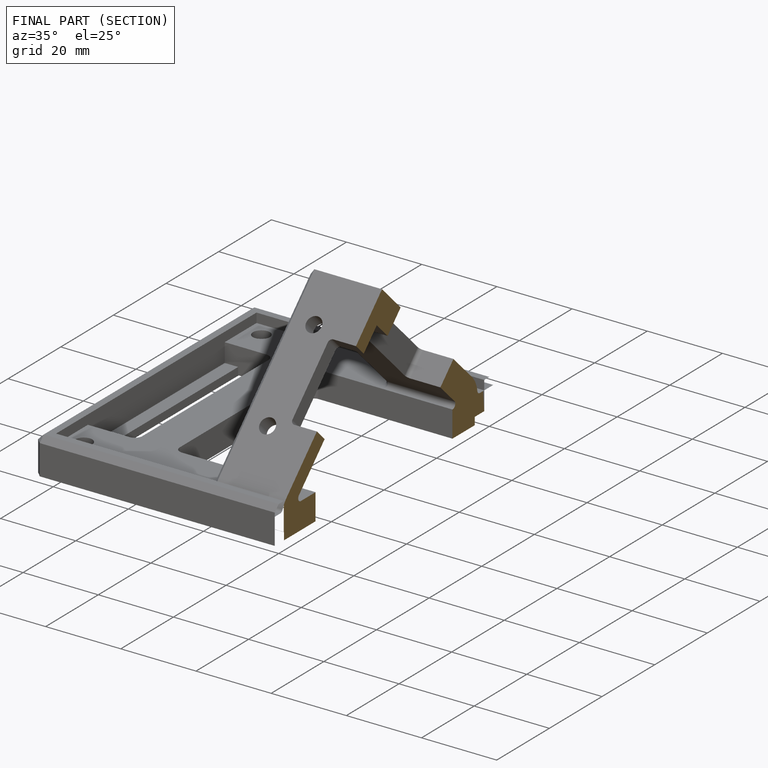
[diagram: finished part — half-section view (interior)]
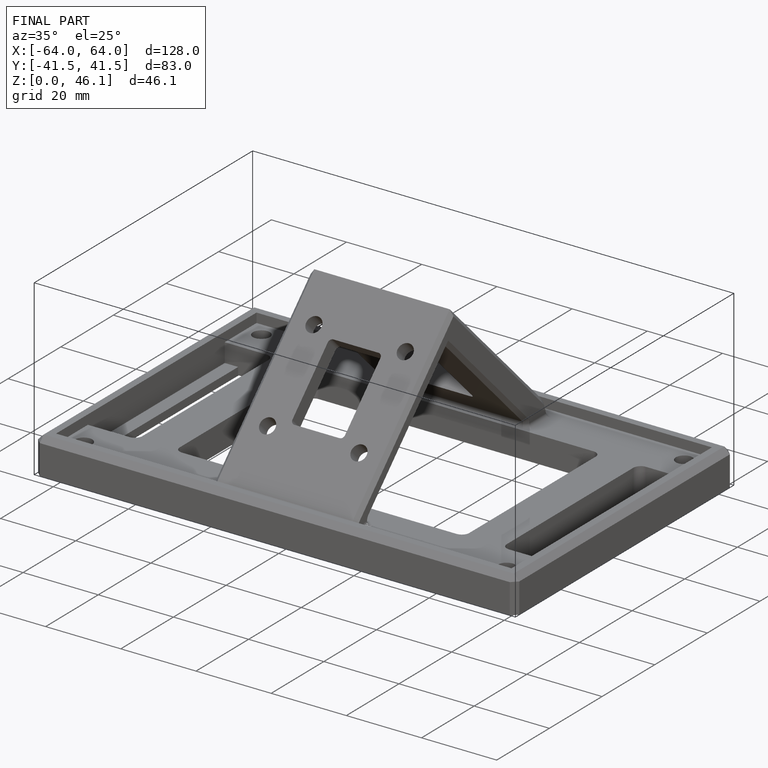
[diagram: finished part — iso view with bounding-box wireframe]
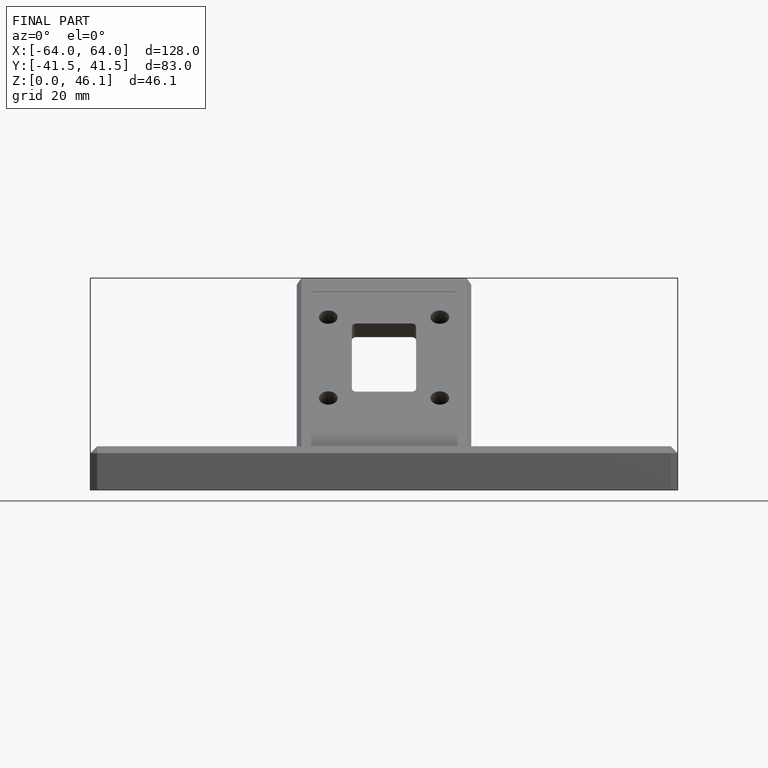
[diagram: finished part — front view with bounding-box wireframe]
